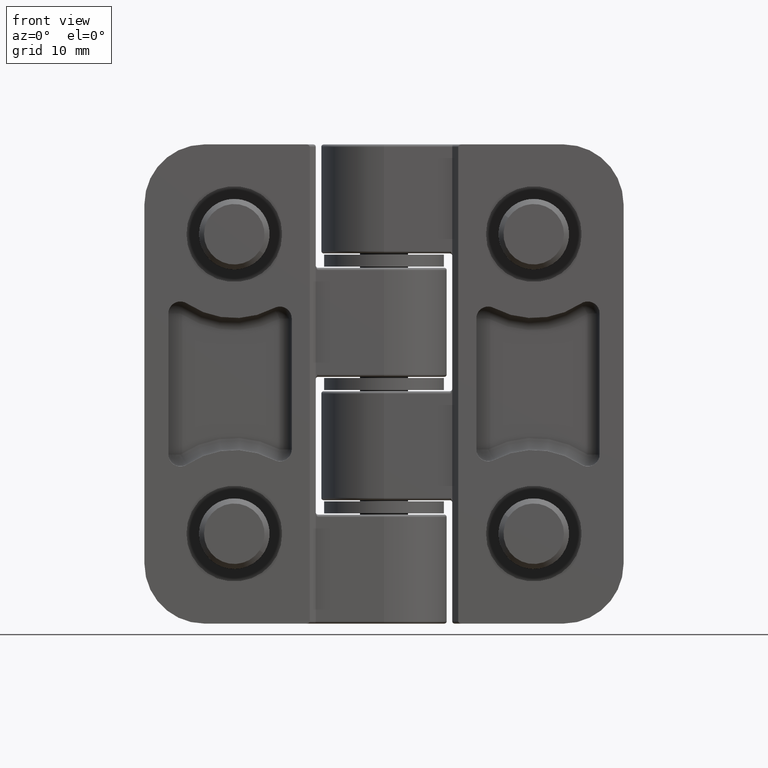
[diagram: clean part render]
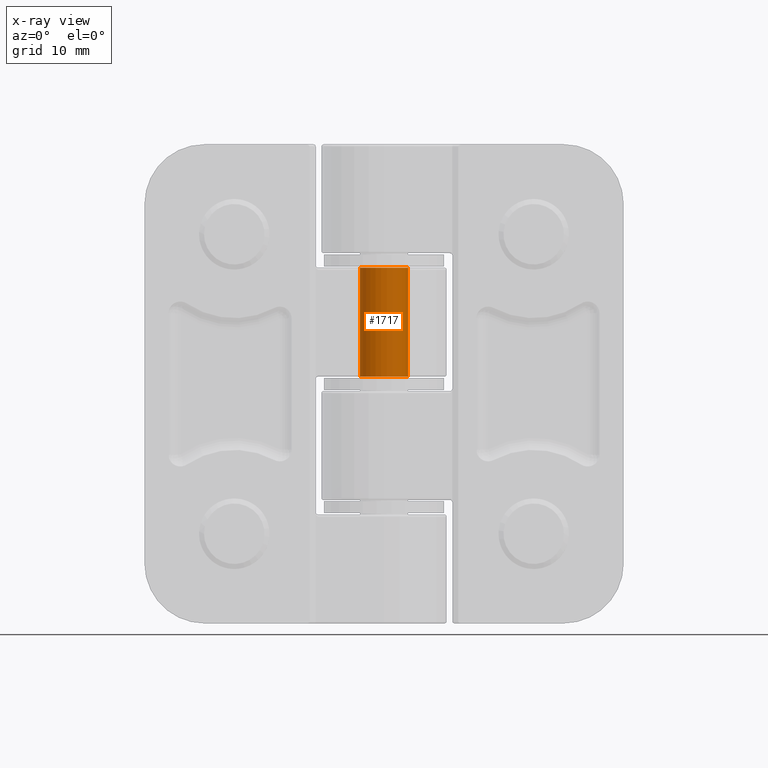
[diagram: x-ray — body ghosted, one internal face saturated and labeled with its STEP entity id]
A machine part, front view, then the same camera in x-ray: the body is ghosted and one INTERNAL B-rep face — a face not visible from any outside direction — is saturated and labeled: STEP entity #1717.
In plain terms, the highlighted cylindrical surface (bore or boss wall) has radius 2 mm, axis along (-0, 0, -1).
Its self-contained STEP definition (entity closure, byte-faithful):
#73=FACE_BOUND('',#489,.T.);
#374=FACE_OUTER_BOUND('',#488,.T.);
#488=EDGE_LOOP('',(#1564));
#489=EDGE_LOOP('',(#1565));
#529=CIRCLE('',#1773,2.);
#552=CIRCLE('',#1821,2.);
#757=VERTEX_POINT('',#22856);
#786=VERTEX_POINT('',#22969);
#945=EDGE_CURVE('',#757,#757,#529,.T.);
#997=EDGE_CURVE('',#786,#786,#552,.T.);
#1564=ORIENTED_EDGE('',*,*,#997,.T.);
#1565=ORIENTED_EDGE('',*,*,#945,.T.);
#1623=CYLINDRICAL_SURFACE('',#1916,2.);
#1717=ADVANCED_FACE('',(#374,#73),#1623,.F.);
#1773=AXIS2_PLACEMENT_3D('',#22857,#2046,#2047);
#1821=AXIS2_PLACEMENT_3D('',#22970,#2166,#2167);
#1916=AXIS2_PLACEMENT_3D('',#23166,#2390,#2391);
#2046=DIRECTION('center_axis',(2.43281279657733E-16,8.18474176170565E-32,
-1.));
#2047=DIRECTION('ref_axis',(-1.,1.99119444945584E-47,-2.43281279657733E-16));
#2166=DIRECTION('center_axis',(-2.43281279657733E-16,-8.18474176170565E-32,
1.));
#2167=DIRECTION('ref_axis',(-1.,1.99119444945584E-47,-2.43281279657733E-16));
#2390=DIRECTION('center_axis',(0.,0.,1.));
#2391=DIRECTION('ref_axis',(-1.,0.,0.));
#22856=CARTESIAN_POINT('',(2.,-2.44929359829471E-16,-9.7));
#22857=CARTESIAN_POINT('Origin',(0.,0.,-9.7));
#22969=CARTESIAN_POINT('',(2.,2.44929359829471E-16,-0.600000000000001));
#22970=CARTESIAN_POINT('Origin',(0.,0.,-0.600000000000001));
#23166=CARTESIAN_POINT('Origin',(0.,0.,0.));